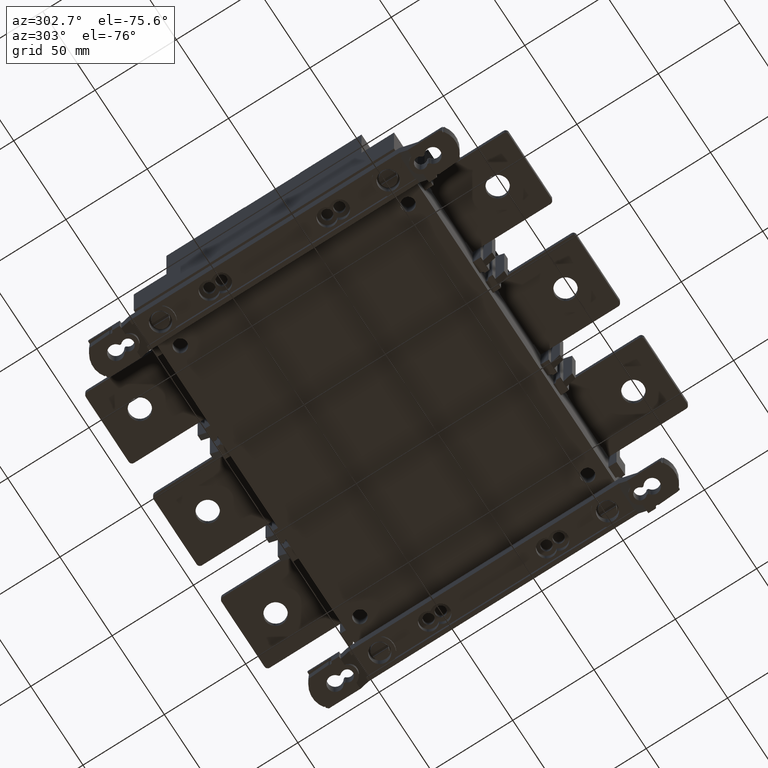
[diagram: clean part render]
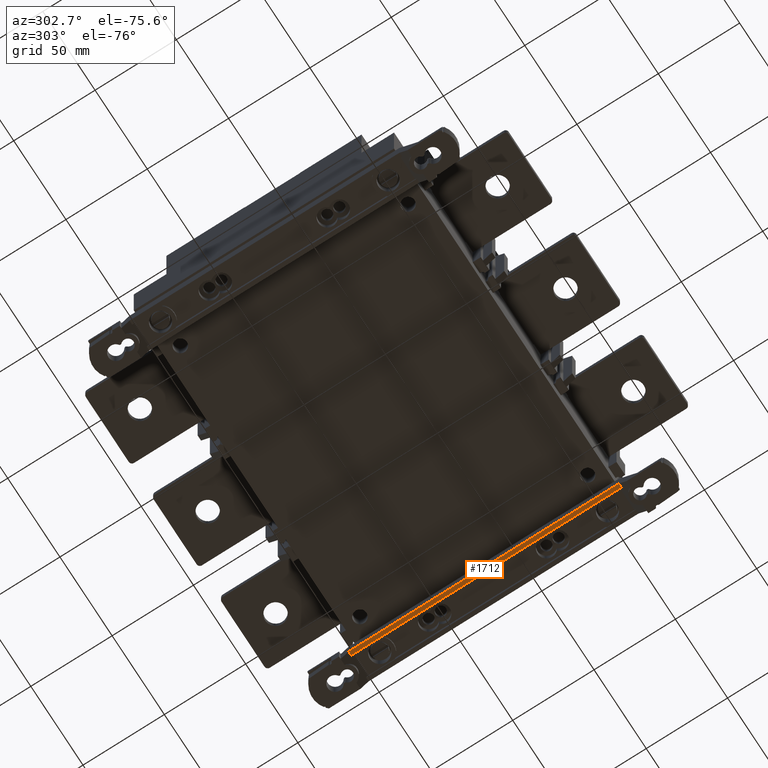
[diagram: same view with one face highlighted and labeled with its STEP entity id]
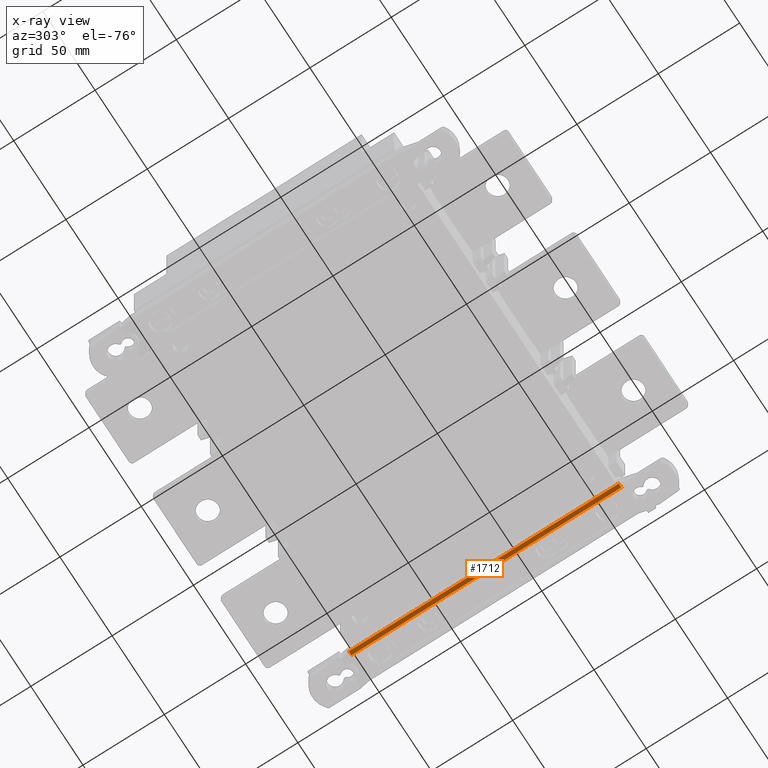
[diagram: x-ray of the same camera — body ghosted, the highlighted face saturated]
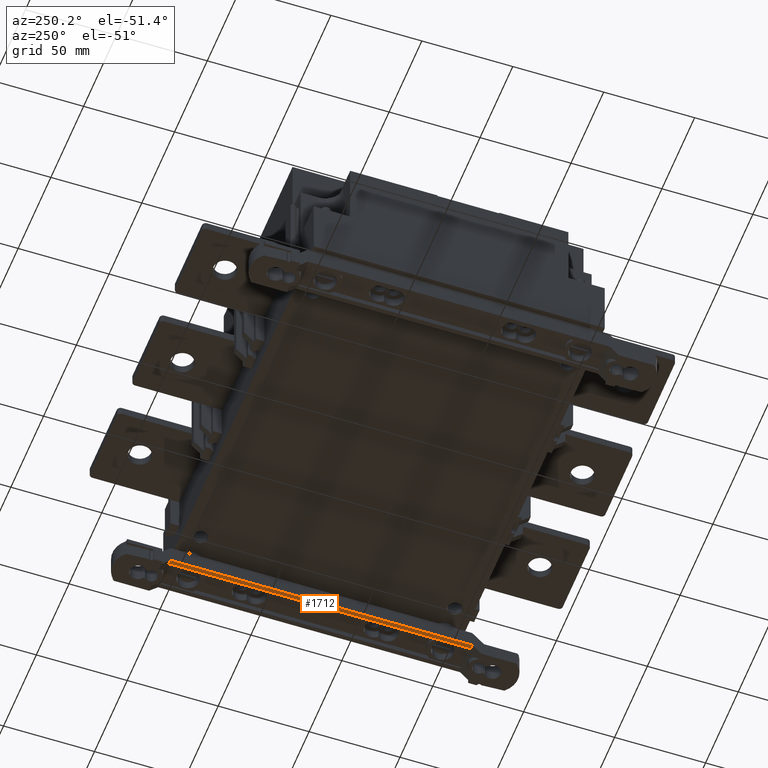
[diagram: same view with one face highlighted and labeled with its STEP entity id]
A machine part, auxiliary view. The second image highlights one B-rep face of the part: STEP entity #1712.
The next image is the same camera in x-ray: the body ghosted, the highlighted face saturated — about 0% of this face is hidden behind the body in this view.
A second angle (auxiliary view) of the same face is appended — the face is thin or edge-on in the first view.
In plain terms, the highlighted planar face has unit normal (0, 0, 1).
Its self-contained STEP definition (entity closure, byte-faithful):
#1712=ADVANCED_FACE('',(#2905),#2292,.F.);
#2292=PLANE('',#16096);
#2905=FACE_OUTER_BOUND('',#3939,.T.);
#3939=EDGE_LOOP('',(#8229,#8230,#8231,#8232));
#8229=ORIENTED_EDGE('',*,*,#11908,.T.);
#8230=ORIENTED_EDGE('',*,*,#11911,.T.);
#8231=ORIENTED_EDGE('',*,*,#11898,.F.);
#8232=ORIENTED_EDGE('',*,*,#11912,.F.);
#9929=VERTEX_POINT('',#24782);
#9934=VERTEX_POINT('',#24792);
#9936=VERTEX_POINT('',#24798);
#9942=VERTEX_POINT('',#24812);
#11898=EDGE_CURVE('',#9934,#9929,#13380,.T.);
#11908=EDGE_CURVE('',#9936,#9942,#13389,.T.);
#11911=EDGE_CURVE('',#9942,#9929,#13392,.T.);
#11912=EDGE_CURVE('',#9936,#9934,#13393,.T.);
#13380=LINE('',#24793,#14808);
#13389=LINE('',#24813,#14817);
#13392=LINE('',#24819,#14820);
#13393=LINE('',#24820,#14821);
#14808=VECTOR('',#19980,1.);
#14817=VECTOR('',#19995,1.);
#14820=VECTOR('',#20004,1.);
#14821=VECTOR('',#20005,1.);
#16096=AXIS2_PLACEMENT_3D('',#24821,#20006,#20007);
#19980=DIRECTION('',(0.,1.,0.));
#19995=DIRECTION('',(2.22044604925032E-016,1.,0.));
#20004=DIRECTION('',(1.,0.,0.));
#20005=DIRECTION('',(1.,0.,0.));
#20006=DIRECTION('',(0.,0.,1.));
#20007=DIRECTION('',(-1.,2.22044604925031E-016,0.));
#24782=CARTESIAN_POINT('',(128.,53.,-122.000000000002));
#24792=CARTESIAN_POINT('',(128.,-113.,-122.000000000002));
#24793=CARTESIAN_POINT('',(128.,65.185790551089,-122.000000000002));
#24798=CARTESIAN_POINT('',(125.5,-113.,-122.000000000002));
#24812=CARTESIAN_POINT('',(125.5,52.9999999999992,-122.000000000002));
#24813=CARTESIAN_POINT('',(125.5,50.4999999999994,-122.000000000002));
#24819=CARTESIAN_POINT('',(125.876061171602,53.,-122.000000000002));
#24820=CARTESIAN_POINT('',(135.,-113.,-122.000000000002));
#24821=CARTESIAN_POINT('',(135.,49.9999999999994,-122.000000000002));